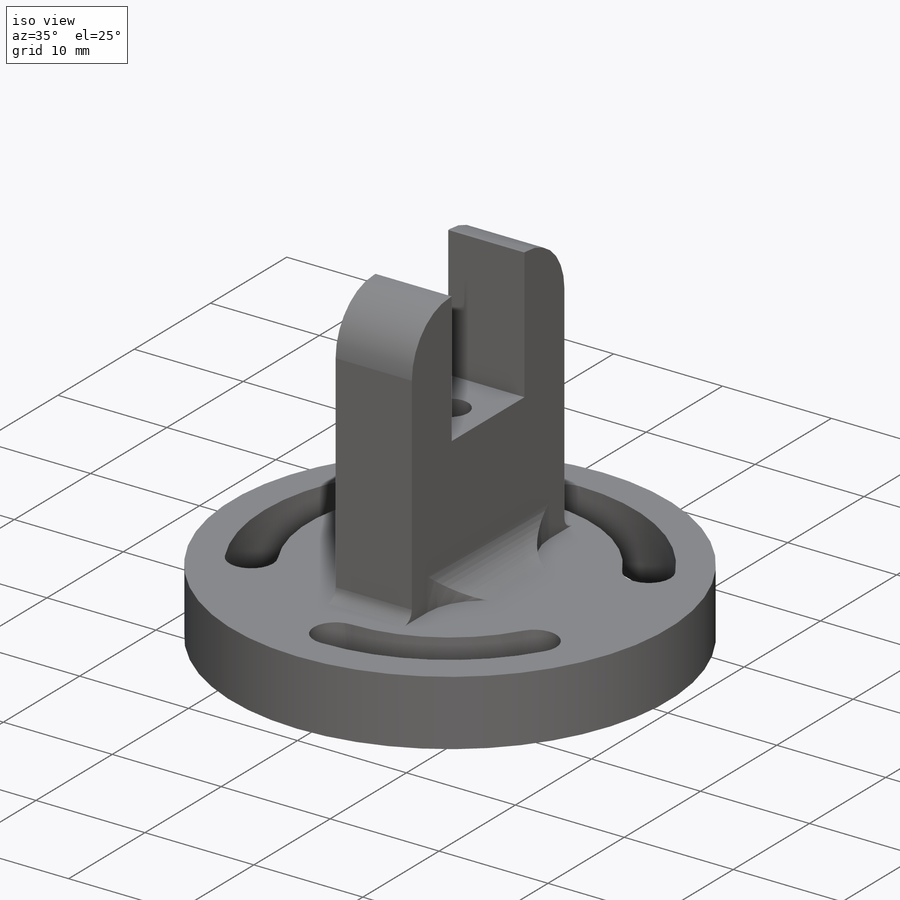
[diagram: iso view]
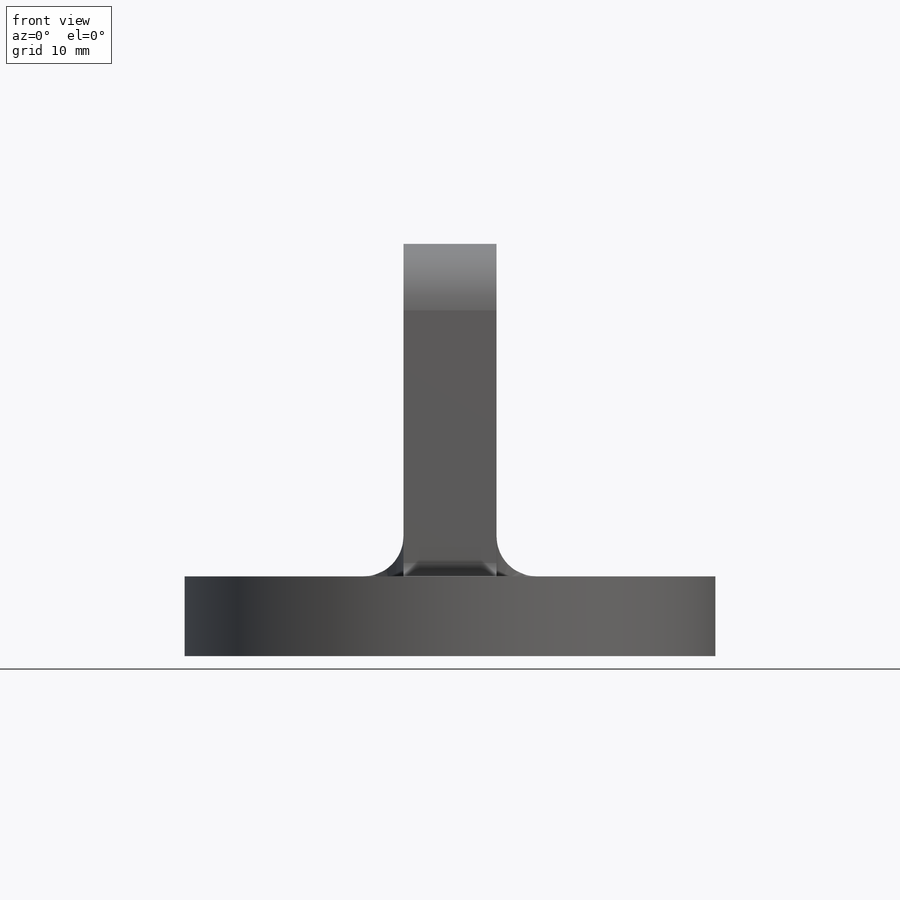
[diagram: front view]
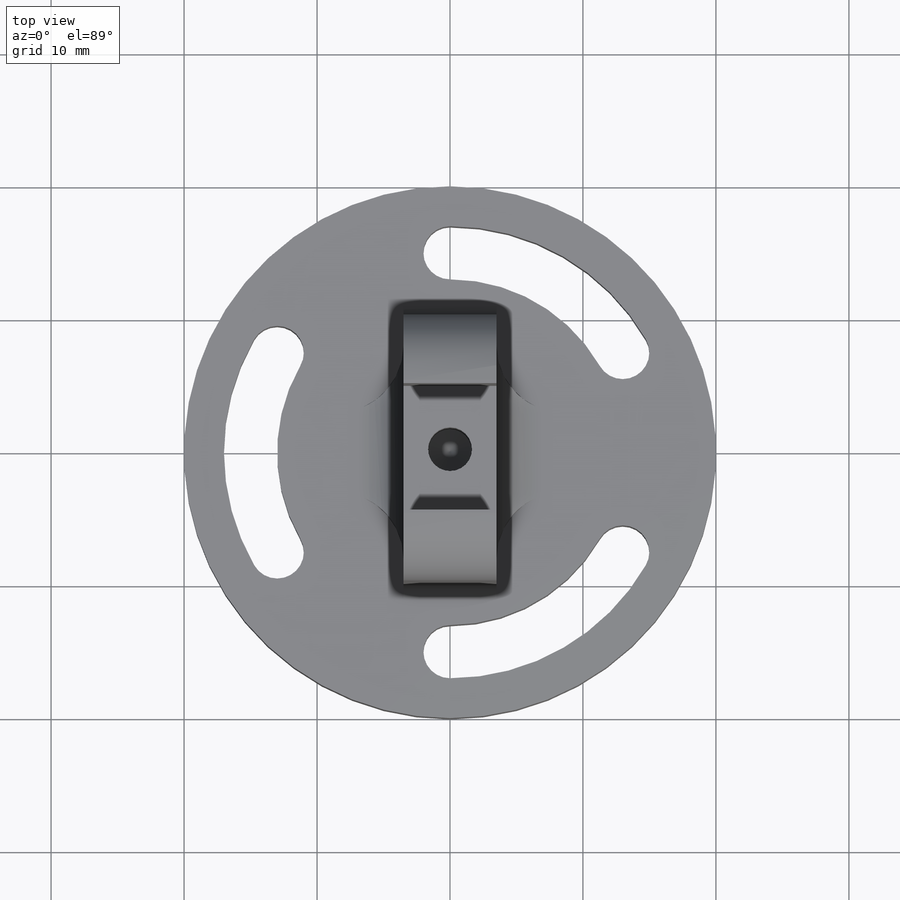
[diagram: top view]
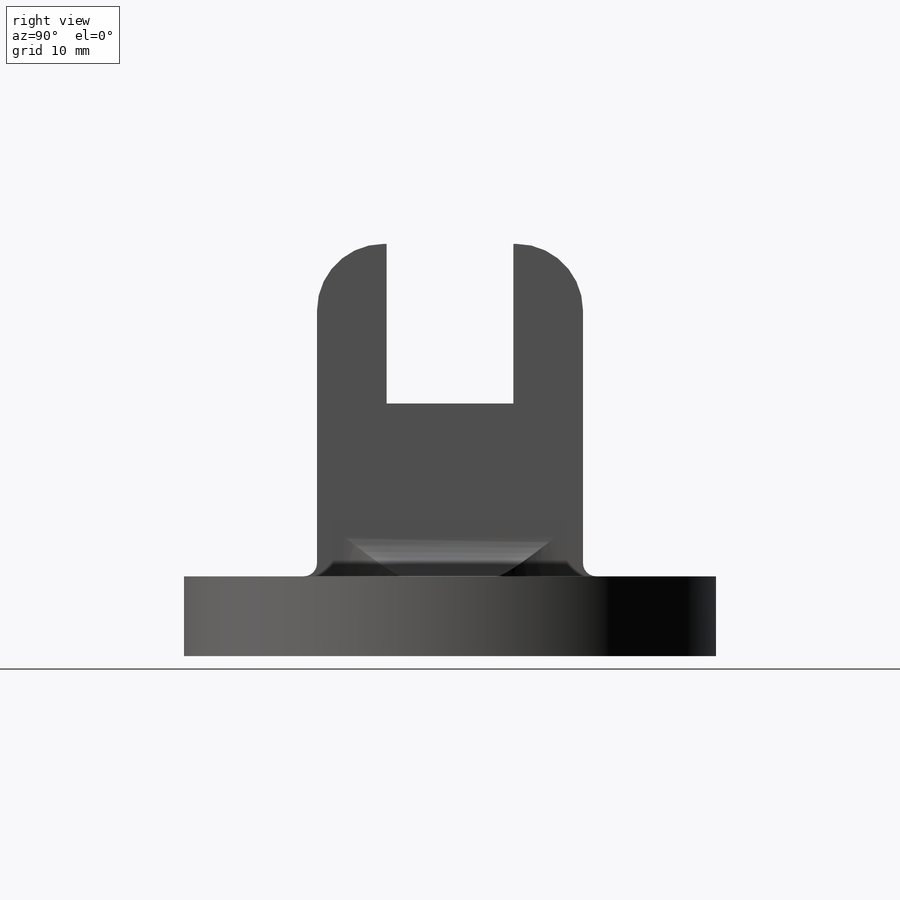
[diagram: right view]
SOLIDWORKS PART (.sldprt)
format: sldprt  version: not decoded by parser v0  size: 317,952 bytes
history: native  units: mm
features: sketch x7, cut_extrude x3, fillet x3, extrude x2, material x1, pattern_circular x1, hole x1, thread x1 (+16 scaffold rows collapsed)
feature tree (35):
  scaffold x16  (default folders/planes/origin — collapsed)
  material  "Stainless Steel (ferritic)"
  sketch  "Sketch1"  dims[D1=40.0mm]
  extrude  "Boss-Extrude1"  Depth=6mm
  sketch  "Sketch2"  dims[c1.D1=30.0mm c1.D2=4.0mm c1.D3=~14.87223mm c2.D3=60.0deg c2.D4=~3.509448mm c3.D4=30.0deg]
  cut_extrude  "Cut-Extrude1"  [1 undecoded]
  pattern_circular  "CirPattern1"  Count=3 Angle=360deg
  sketch  "Sketch3"  dims[D1=7.0mm D2=20.0mm]
  extrude  "Boss-Extrude2"  Depth=25mm
  sketch  "Sketch4"  dims[D1=9.525mm D2=12.0mm]
  cut_extrude  "Cut-Extrude2"  [1 undecoded]
  fillet  "Fillet1"  Radius=1mm
  fillet  "Fillet2"  Radius=3mm
  sketch  "Sketch5"  dims[D1=5.0mm D2=6.0mm D3=3.0mm D4=10.0mm]
  cut_extrude  "Cut-Extrude3"  [1 undecoded]
  hole  "M4x0.7 Tapped Hole1"  Diameter=3.3mm Depth=8.1mm
  sketch  "Sketch7"
  sketch  "Sketch6"  dims[hole-wizard template sketch: 47 standard entries collapsed; hole parameters kept: c15.Tap Drill Depth=8.1mm c15.D3=~14.816244mm c15.Drill Angle=118.0deg]
  thread  "Hole Thread1"  Diameter=6mm  [1 undecoded]
  fillet  "Fillet3"  Radius=5mm
decode coverage: 14 of 18 modeling features carry decoded parameters
note: ~ marks probable driven/reference dimensions
note: 4 parameter values undecoded
summary: no parameter record found for 3 features
note: suppression state not decoded; provenance and decode notes live in map.json
